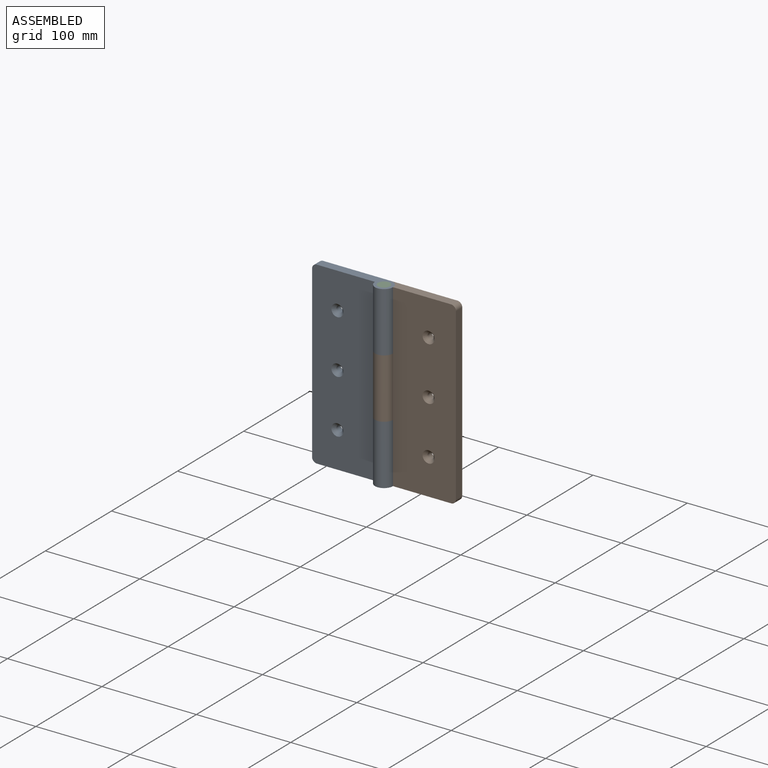
[diagram: assembled view]
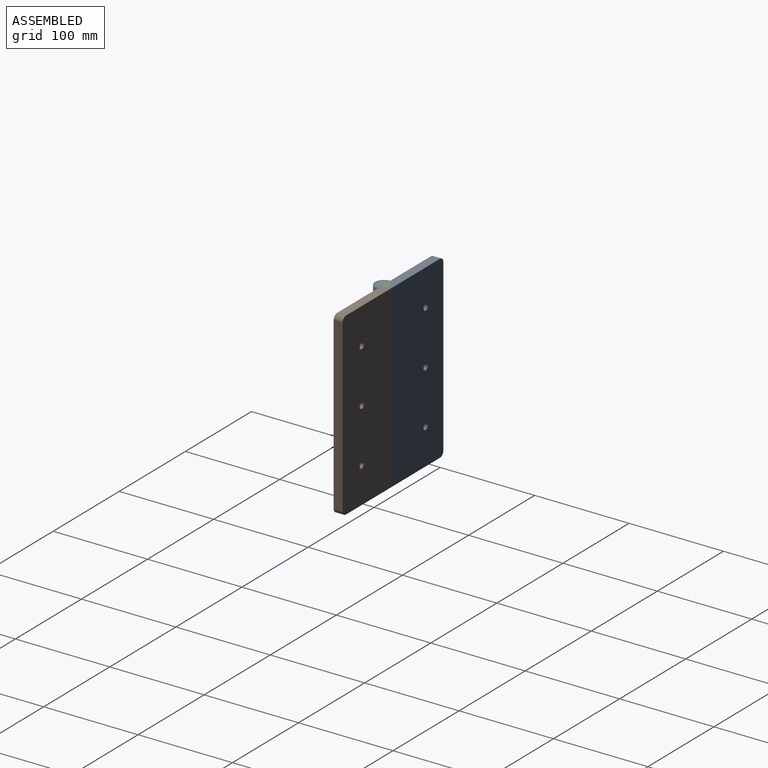
[diagram: assembled view, second angle]
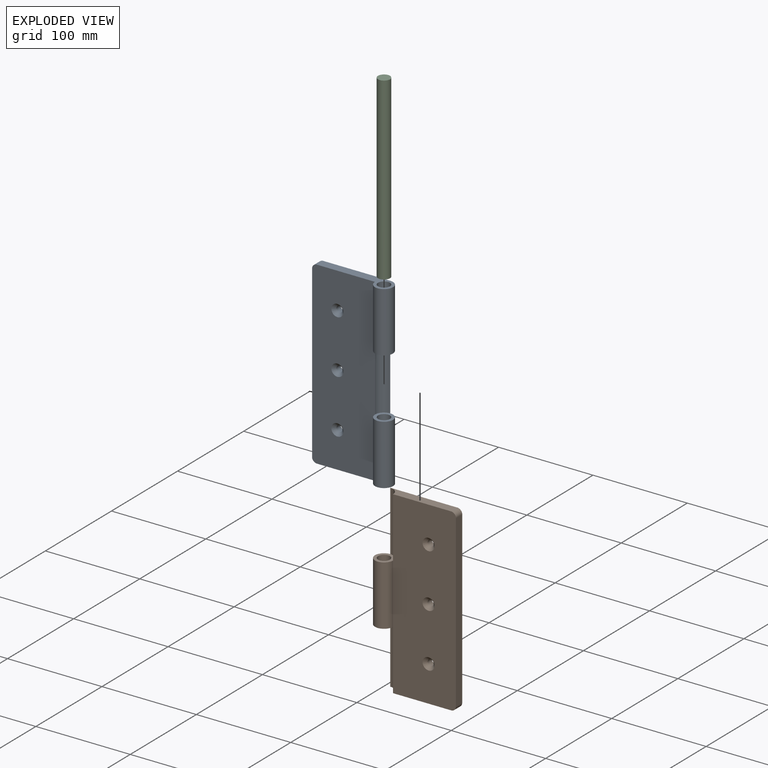
[diagram: exploded view]
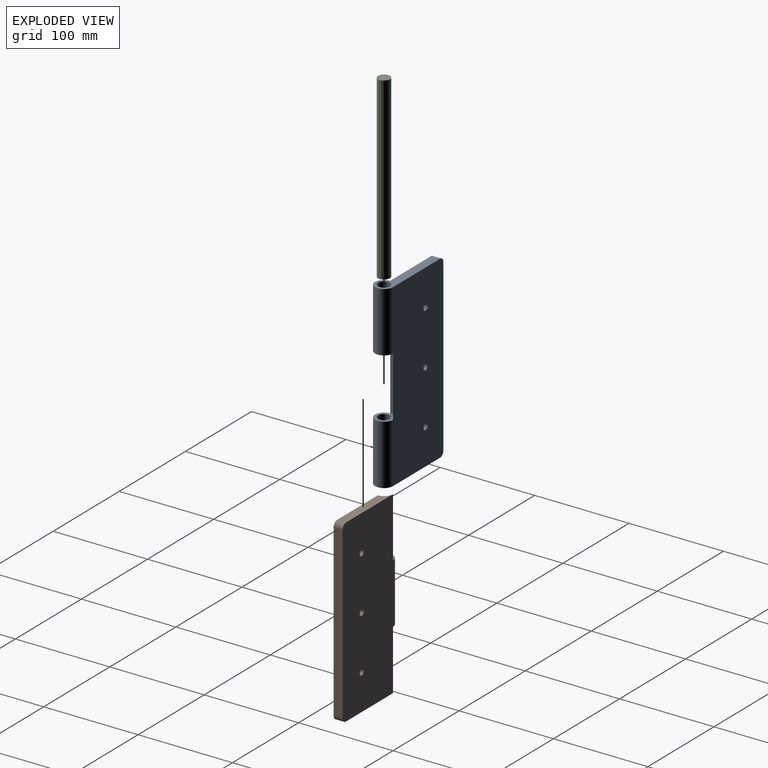
[diagram: exploded view, second angle]
ASSEMBLY  parts=3 mates=2
PART A: 20 faces, bbox 85.7x19.1x190.5 mm
  f0: cylinder r=6.35mm len=63.5mm, axis (0,0,-1), area 2533.5mm2, adj f8,f10
  f1: cylinder r=9.53mm len=63.5mm, axis (0,0,-1), area 2850.2mm2, adj f2,f4,f8,f10
  f2: plane 190.5x66.68mm, normal (0,-1,0), area 12310.5mm2, adj f1,f3,f5,f7,f8,f9,f13,f15
  f3: cylinder r=9.53mm len=63.5mm, axis (0,0,-1), area 2850.2mm2, adj f2,f4,f7,f11
  f4: plane 190.5x76.2mm, normal (0,1,0), area 14410mm2, adj f1,f3,f5,f7,f8,f9,f12,f14
  f5: plane 180.34x9.53mm, normal (-1,0,0), area 1717.7mm2, adj f2,f4,f18,f19
  f6: cylinder r=6.35mm len=63.5mm, axis (0,0,-1), area 2533.5mm2, adj f7,f11
  f7: plane 80.65x19.05mm, normal (0,0,1), area 764.5mm2, adj f2,f3,f4,f6,f19
  f8: plane 80.65x19.05mm, normal (0,0,-1), area 764.5mm2, adj f0,f1,f2,f4,f18
  f9: cylinder r=9.53mm len=63.5mm, axis (0,0,1), area 950.1mm2, adj f2,f4,f10,f11
  f10: plane 19.05x19.05mm, normal (0,0,1), area 158.3mm2, adj f0,f1,f9
  f11: plane 19.05x19.05mm, normal (0,0,-1), area 158.3mm2, adj f3,f6,f9
  f12: cylinder r=3.17mm len=6.35mm, axis (0,-1,0), area 126.7mm2, adj f4,f13
  f13: cone r=3.17mm half-angle=45deg, axis (0,-1,0), area 134.4mm2, adj f2,f12
  f14: cylinder r=3.17mm len=6.35mm, axis (0,-1,0), area 126.7mm2, adj f4,f15
  f15: cone r=3.17mm half-angle=45deg, axis (0,-1,0), area 134.4mm2, adj f2,f14
  f16: cylinder r=3.17mm len=6.35mm, axis (0,-1,0), area 126.7mm2, adj f4,f17
  f17: cone r=3.17mm half-angle=45deg, axis (0,-1,0), area 134.4mm2, adj f2,f16
  f18: cylinder r=5.08mm len=9.53mm, axis (0,-1,0), area 76mm2, adj f2,f4,f5,f8
  f19: cylinder r=5.08mm len=9.53mm, axis (0,1,0), area 76mm2, adj f2,f4,f5,f7
PART B: 19 faces, bbox 85.7x19.1x190.5 mm
  f0: cylinder r=9.53mm len=63.5mm, axis (0,0,-1), area 2850.2mm2, adj f2,f3,f6,f8
  f1: cylinder r=6.35mm len=63.5mm, axis (0,0,-1), area 2533.5mm2, adj f2,f3
  f2: plane 19.05x19.05mm, normal (0,0,1), area 158.3mm2, adj f0,f1,f4
  f3: plane 19.05x19.05mm, normal (0,0,-1), area 158.3mm2, adj f0,f1,f5
  f4: cylinder r=9.53mm len=63.5mm, axis (0,0,-1), area 950.1mm2, adj f2,f6,f8,f9
  f5: cylinder r=9.53mm len=63.5mm, axis (0,0,-1), area 950.1mm2, adj f3,f6,f8,f10
  f6: plane 190.5x66.68mm, normal (0,-1,0), area 12310.5mm2, adj f0,f4,f5,f7,f9,f10,f12,f14
  f7: plane 180.34x9.53mm, normal (1,0,0), area 1717.7mm2, adj f6,f8,f17,f18
  f8: plane 190.5x76.2mm, normal (0,1,0), area 14410mm2, adj f0,f4,f5,f7,f9,f10,f11,f13
  f9: plane 71.12x9.53mm, normal (0,0,1), area 606.2mm2, adj f4,f6,f8,f18
  f10: plane 71.12x9.53mm, normal (0,0,-1), area 606.2mm2, adj f5,f6,f8,f17
  f11: cylinder r=3.17mm len=6.35mm, axis (0,-1,0), area 126.7mm2, adj f8,f12
  f12: cone r=3.17mm half-angle=45deg, axis (0,-1,0), area 134.4mm2, adj f6,f11
  f13: cylinder r=3.17mm len=6.35mm, axis (0,-1,0), area 126.7mm2, adj f8,f14
  f14: cone r=3.17mm half-angle=45deg, axis (0,-1,0), area 134.4mm2, adj f6,f13
  f15: cylinder r=3.17mm len=6.35mm, axis (0,-1,0), area 126.7mm2, adj f8,f16
  f16: cone r=3.17mm half-angle=45deg, axis (0,-1,0), area 134.4mm2, adj f6,f15
  f17: cylinder r=5.08mm len=9.53mm, axis (0,1,0), area 76mm2, adj f6,f7,f8,f10
  f18: cylinder r=5.08mm len=9.53mm, axis (0,-1,0), area 76mm2, adj f6,f7,f8,f9
PART C: 3 faces, bbox 12.7x12.7x190.5 mm
  f0: cylinder r=6.35mm len=190.5mm, axis (0,0,-1), area 7600.6mm2, adj f1,f2
  f1: plane 12.7x12.7mm, normal (0,0,1), area 126.7mm2, adj f0
  f2: plane 12.7x12.7mm, normal (0,0,-1), area 126.7mm2, adj f0
PLACE A t=(9.67,27.31,3.72)mm
PLACE B t=(9.67,27.31,3.72)mm
PLACE C t=(9.67,27.31,3.72)mm
MATE revolute A.f0 <-> B.f0  axis (0,0,1) through (9.67,27.31,-28.03)mm
MATE pin_slot C.f0 <-> A.f0  axis (0,0,1) through (9.67,27.31,98.97)mm
